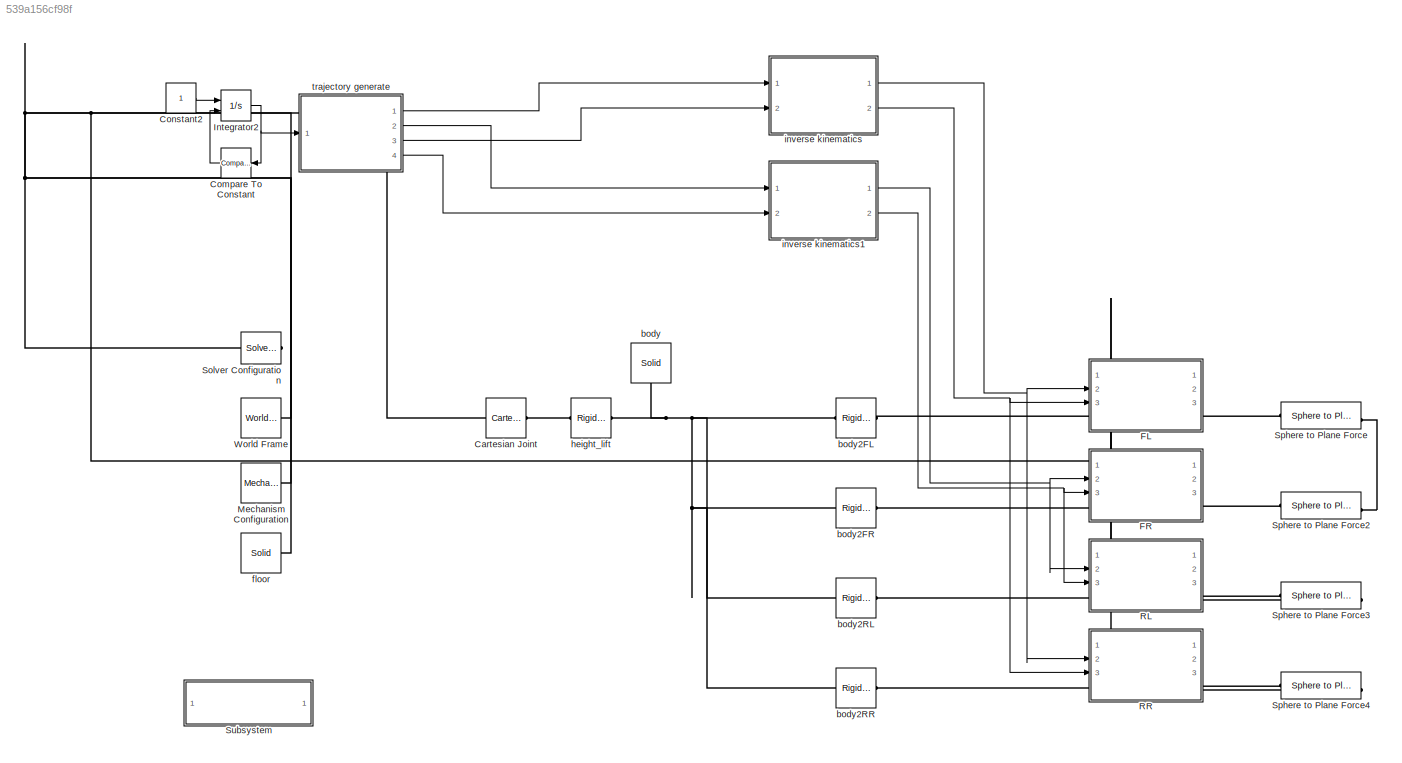
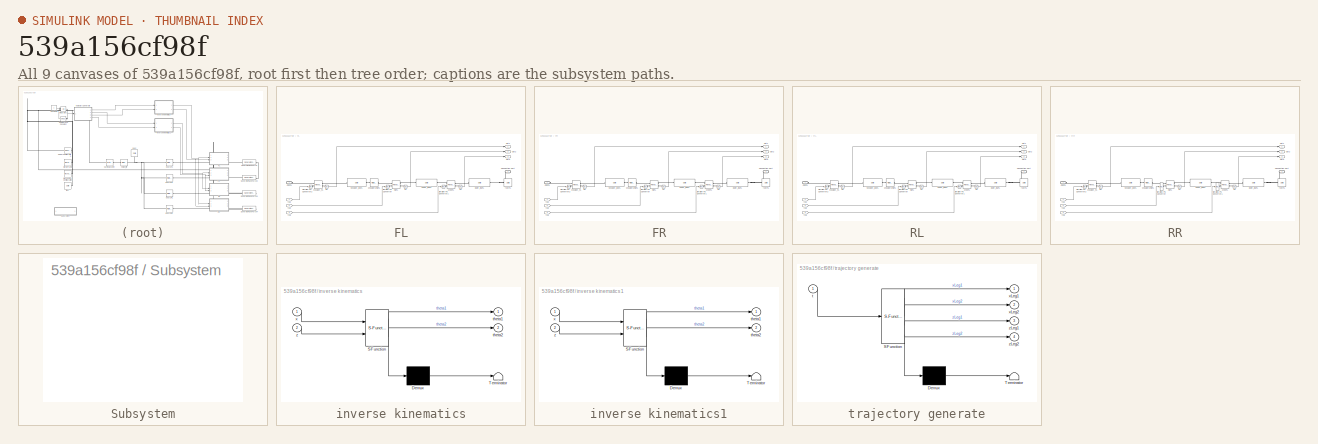
[diagram: thumbnail index - all 9 canvases of the model, root first then tree order]
MODEL slx_539a156cf98f
KIND model
CONFIG AbsTol = auto
CONFIG EnableMultiTasking = on
CONFIG FixedStep = 0.001
CONFIG MaxStep = auto
CONFIG MinStep = auto
CONFIG RelTol = 1e-3
CONFIG SampleTimeConstraint = Unconstrained
CONFIG Solver = FixedStepAuto
CONFIG SolverName = FixedStepAuto
CONFIG StartTime = 0.0
CONFIG StopTime = 5
BLOCK [Reference] Cartesian Joint  REF=sm_lib/Joints/Cartesian
Joint
  Ports = [0, 0, 0, 0, 0, 1, 1]
  SourceBlock = sm_lib/Joints/Cartesian\nJoint
  SourceProductBaseCode = MS
  SourceProductName = Simscape Multibody
  SourceType = Cartesian\nJoint
BLOCK [Reference] Compare To Constant  REF=simulink/Logic and Bit
Operations/Compare
To Constant
  Ports = [1, 1]
  SourceBlock = simulink/Logic and Bit\nOperations/Compare\nTo Constant
  SourceProductBaseCode = SL
  SourceProductName = Simulink
  SourceType = Compare To Constant
BLOCK [Constant] Constant2
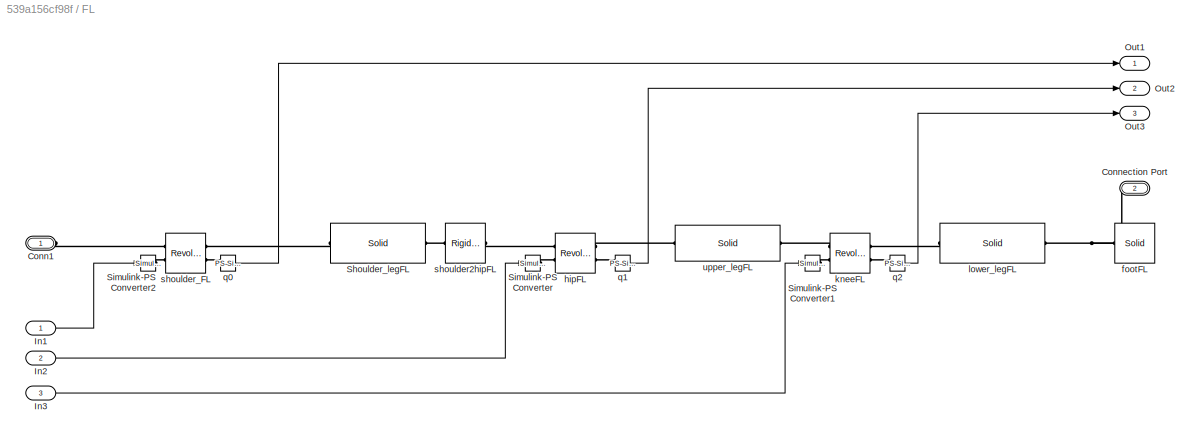
BLOCK [SubSystem] FL
  Ports = [3, 3, 0, 0, 0, 1, 1]
  RequestExecContextInheritance = off
BLOCK [PMIOPort] FL/Conn1
  Side = Left
BLOCK [PMIOPort] FL/Connection Port
  Port = 2
  Side = Right
BLOCK [Inport] FL/In1
  IconDisplay = Port number
BLOCK [Inport] FL/In2
  IconDisplay = Port number
  Port = 2
BLOCK [Inport] FL/In3
  IconDisplay = Port number
  Port = 3
BLOCK [Outport] FL/Out1
  IconDisplay = Port number
BLOCK [Outport] FL/Out2
  IconDisplay = Port number
  Port = 2
BLOCK [Outport] FL/Out3
  IconDisplay = Port number
  Port = 3
BLOCK [Reference] FL/Shoulder_legFL  REF=sm_lib/Body Elements/Solid
  Ports = [0, 0, 0, 0, 0, 1, 1]
  SourceBlock = sm_lib/Body Elements/Solid
  SourceProductBaseCode = MS
  SourceProductName = Simscape Multibody
  SourceType = Solid
BLOCK [Reference] FL/Simulink-PS Converter  REF=nesl_utility/Simulink-PS
Converter
  Ports = [1, 0, 0, 0, 0, 0, 1]
  SourceBlock = nesl_utility/Simulink-PS\nConverter
  SourceProductBaseCode = SS
  SourceProductName = Simscape
  SourceType = Simulink-PS\nConverter
BLOCK [Reference] FL/Simulink-PS Converter1  REF=nesl_utility/Simulink-PS
Converter
  Ports = [1, 0, 0, 0, 0, 0, 1]
  SourceBlock = nesl_utility/Simulink-PS\nConverter
  SourceProductBaseCode = SS
  SourceProductName = Simscape
  SourceType = Simulink-PS\nConverter
BLOCK [Reference] FL/Simulink-PS Converter2  REF=nesl_utility/Simulink-PS
Converter
  Ports = [1, 0, 0, 0, 0, 0, 1]
  SourceBlock = nesl_utility/Simulink-PS\nConverter
  SourceProductBaseCode = SS
  SourceProductName = Simscape
  SourceType = Simulink-PS\nConverter
BLOCK [Reference] FL/footFL  REF=sm_lib/Body Elements/Solid
  Ports = [0, 0, 0, 0, 0, 0, 1]
  SourceBlock = sm_lib/Body Elements/Solid
  SourceProductBaseCode = MS
  SourceProductName = Simscape Multibody
  SourceType = Solid
BLOCK [Reference] FL/hipFL  REF=sm_lib/Joints/Revolute Joint
  Ports = [0, 0, 0, 0, 0, 2, 2]
  SourceBlock = sm_lib/Joints/Revolute Joint
  SourceProductBaseCode = MS
  SourceProductName = Simscape Multibody
  SourceType = Revolute Joint
BLOCK [Reference] FL/kneeFL  REF=sm_lib/Joints/Revolute Joint
  Ports = [0, 0, 0, 0, 0, 2, 2]
  SourceBlock = sm_lib/Joints/Revolute Joint
  SourceProductBaseCode = MS
  SourceProductName = Simscape Multibody
  SourceType = Revolute Joint
BLOCK [Reference] FL/lower_legFL  REF=sm_lib/Body Elements/Solid
  Ports = [0, 0, 0, 0, 0, 1, 1]
  SourceBlock = sm_lib/Body Elements/Solid
  SourceProductBaseCode = MS
  SourceProductName = Simscape Multibody
  SourceType = Solid
BLOCK [Reference] FL/q0  REF=nesl_utility/PS-Simulink
Converter
  Ports = [0, 1, 0, 0, 0, 1]
  SourceBlock = nesl_utility/PS-Simulink\nConverter
  SourceProductBaseCode = SS
  SourceProductName = Simscape
  SourceType = PS-Simulink\nConverter
BLOCK [Reference] FL/q1  REF=nesl_utility/PS-Simulink
Converter
  Ports = [0, 1, 0, 0, 0, 1]
  SourceBlock = nesl_utility/PS-Simulink\nConverter
  SourceProductBaseCode = SS
  SourceProductName = Simscape
  SourceType = PS-Simulink\nConverter
BLOCK [Reference] FL/q2  REF=nesl_utility/PS-Simulink
Converter
  Ports = [0, 1, 0, 0, 0, 1]
  SourceBlock = nesl_utility/PS-Simulink\nConverter
  SourceProductBaseCode = SS
  SourceProductName = Simscape
  SourceType = PS-Simulink\nConverter
BLOCK [Reference] FL/shoulder2hipFL  REF=sm_lib/Frames and
Transforms/Rigid
Transform
  Ports = [0, 0, 0, 0, 0, 1, 1]
  SourceBlock = sm_lib/Frames and\nTransforms/Rigid\nTransform
  SourceProductBaseCode = MS
  SourceProductName = Simscape Multibody
  SourceType = Rigid\nTransform
BLOCK [Reference] FL/shoulder_FL  REF=sm_lib/Joints/Revolute Joint
  Ports = [0, 0, 0, 0, 0, 2, 2]
  SourceBlock = sm_lib/Joints/Revolute Joint
  SourceProductBaseCode = MS
  SourceProductName = Simscape Multibody
  SourceType = Revolute Joint
BLOCK [Reference] FL/upper_legFL  REF=sm_lib/Body Elements/Solid
  Ports = [0, 0, 0, 0, 0, 1, 1]
  SourceBlock = sm_lib/Body Elements/Solid
  SourceProductBaseCode = MS
  SourceProductName = Simscape Multibody
  SourceType = Solid
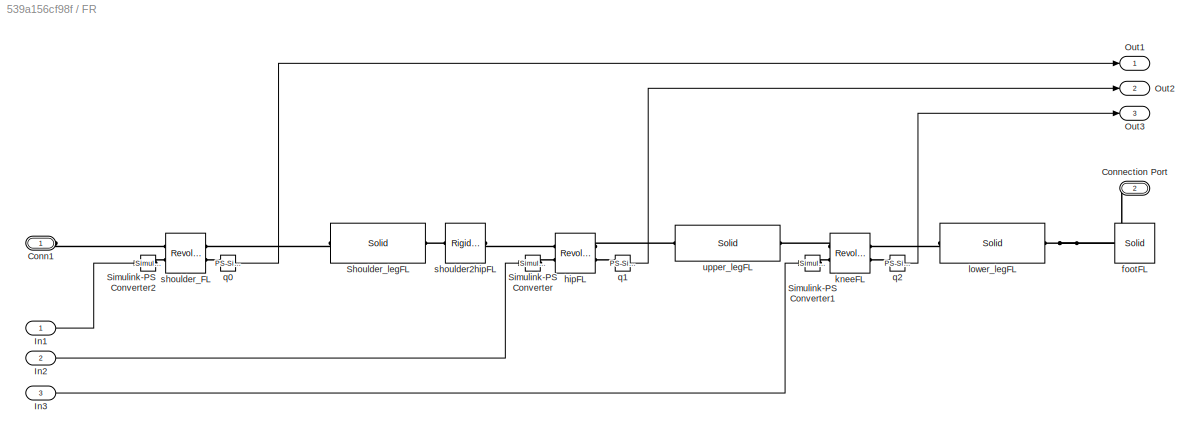
BLOCK [SubSystem] FR
  Ports = [3, 3, 0, 0, 0, 1, 1]
  RequestExecContextInheritance = off
BLOCK [PMIOPort] FR/Conn1
  Side = Left
BLOCK [PMIOPort] FR/Connection Port
  Port = 2
  Side = Right
BLOCK [Inport] FR/In1
  IconDisplay = Port number
BLOCK [Inport] FR/In2
  IconDisplay = Port number
  Port = 2
BLOCK [Inport] FR/In3
  IconDisplay = Port number
  Port = 3
BLOCK [Outport] FR/Out1
  IconDisplay = Port number
BLOCK [Outport] FR/Out2
  IconDisplay = Port number
  Port = 2
BLOCK [Outport] FR/Out3
  IconDisplay = Port number
  Port = 3
BLOCK [Reference] FR/Shoulder_legFL  REF=sm_lib/Body Elements/Solid
  Ports = [0, 0, 0, 0, 0, 1, 1]
  SourceBlock = sm_lib/Body Elements/Solid
  SourceProductBaseCode = MS
  SourceProductName = Simscape Multibody
  SourceType = Solid
BLOCK [Reference] FR/Simulink-PS Converter  REF=nesl_utility/Simulink-PS
Converter
  Ports = [1, 0, 0, 0, 0, 0, 1]
  SourceBlock = nesl_utility/Simulink-PS\nConverter
  SourceProductBaseCode = SS
  SourceProductName = Simscape
  SourceType = Simulink-PS\nConverter
BLOCK [Reference] FR/Simulink-PS Converter1  REF=nesl_utility/Simulink-PS
Converter
  Ports = [1, 0, 0, 0, 0, 0, 1]
  SourceBlock = nesl_utility/Simulink-PS\nConverter
  SourceProductBaseCode = SS
  SourceProductName = Simscape
  SourceType = Simulink-PS\nConverter
BLOCK [Reference] FR/Simulink-PS Converter2  REF=nesl_utility/Simulink-PS
Converter
  Ports = [1, 0, 0, 0, 0, 0, 1]
  SourceBlock = nesl_utility/Simulink-PS\nConverter
  SourceProductBaseCode = SS
  SourceProductName = Simscape
  SourceType = Simulink-PS\nConverter
BLOCK [Reference] FR/footFL  REF=sm_lib/Body Elements/Solid
  Ports = [0, 0, 0, 0, 0, 0, 1]
  SourceBlock = sm_lib/Body Elements/Solid
  SourceProductBaseCode = MS
  SourceProductName = Simscape Multibody
  SourceType = Solid
BLOCK [Reference] FR/hipFL  REF=sm_lib/Joints/Revolute Joint
  Ports = [0, 0, 0, 0, 0, 2, 2]
  SourceBlock = sm_lib/Joints/Revolute Joint
  SourceProductBaseCode = MS
  SourceProductName = Simscape Multibody
  SourceType = Revolute Joint
BLOCK [Reference] FR/kneeFL  REF=sm_lib/Joints/Revolute Joint
  Ports = [0, 0, 0, 0, 0, 2, 2]
  SourceBlock = sm_lib/Joints/Revolute Joint
  SourceProductBaseCode = MS
  SourceProductName = Simscape Multibody
  SourceType = Revolute Joint
BLOCK [Reference] FR/lower_legFL  REF=sm_lib/Body Elements/Solid
  Ports = [0, 0, 0, 0, 0, 1, 1]
  SourceBlock = sm_lib/Body Elements/Solid
  SourceProductBaseCode = MS
  SourceProductName = Simscape Multibody
  SourceType = Solid
BLOCK [Reference] FR/q0  REF=nesl_utility/PS-Simulink
Converter
  Ports = [0, 1, 0, 0, 0, 1]
  SourceBlock = nesl_utility/PS-Simulink\nConverter
  SourceProductBaseCode = SS
  SourceProductName = Simscape
  SourceType = PS-Simulink\nConverter
BLOCK [Reference] FR/q1  REF=nesl_utility/PS-Simulink
Converter
  Ports = [0, 1, 0, 0, 0, 1]
  SourceBlock = nesl_utility/PS-Simulink\nConverter
  SourceProductBaseCode = SS
  SourceProductName = Simscape
  SourceType = PS-Simulink\nConverter
BLOCK [Reference] FR/q2  REF=nesl_utility/PS-Simulink
Converter
  Ports = [0, 1, 0, 0, 0, 1]
  SourceBlock = nesl_utility/PS-Simulink\nConverter
  SourceProductBaseCode = SS
  SourceProductName = Simscape
  SourceType = PS-Simulink\nConverter
BLOCK [Reference] FR/shoulder2hipFL  REF=sm_lib/Frames and
Transforms/Rigid
Transform
  Ports = [0, 0, 0, 0, 0, 1, 1]
  SourceBlock = sm_lib/Frames and\nTransforms/Rigid\nTransform
  SourceProductBaseCode = MS
  SourceProductName = Simscape Multibody
  SourceType = Rigid\nTransform
BLOCK [Reference] FR/shoulder_FL  REF=sm_lib/Joints/Revolute Joint
  Ports = [0, 0, 0, 0, 0, 2, 2]
  SourceBlock = sm_lib/Joints/Revolute Joint
  SourceProductBaseCode = MS
  SourceProductName = Simscape Multibody
  SourceType = Revolute Joint
BLOCK [Reference] FR/upper_legFL  REF=sm_lib/Body Elements/Solid
  Ports = [0, 0, 0, 0, 0, 1, 1]
  SourceBlock = sm_lib/Body Elements/Solid
  SourceProductBaseCode = MS
  SourceProductName = Simscape Multibody
  SourceType = Solid
BLOCK [Integrator] Integrator2
  ExternalReset = level
  Ports = [2, 1]
BLOCK [Reference] Mechanism Configuration  REF=sm_lib/Utilities/Mechanism
Configuration
  Ports = [0, 0, 0, 0, 0, 0, 1]
  SourceBlock = sm_lib/Utilities/Mechanism\nConfiguration
  SourceProductBaseCode = MS
  SourceProductName = Simscape Multibody
  SourceType = Mechanism\nConfiguration
BLOCK [SubSystem] RL
  Ports = [3, 3, 0, 0, 0, 1, 1]
  RequestExecContextInheritance = off
BLOCK [PMIOPort] RL/Conn1
  Side = Left
BLOCK [PMIOPort] RL/Connection Port
  Port = 2
  Side = Right
BLOCK [Inport] RL/In1
  IconDisplay = Port number
BLOCK [Inport] RL/In2
  IconDisplay = Port number
  Port = 2
BLOCK [Inport] RL/In3
  IconDisplay = Port number
  Port = 3
BLOCK [Outport] RL/Out1
  IconDisplay = Port number
BLOCK [Outport] RL/Out2
  IconDisplay = Port number
  Port = 2
BLOCK [Outport] RL/Out3
  IconDisplay = Port number
  Port = 3
BLOCK [Reference] RL/Shoulder_legFL  REF=sm_lib/Body Elements/Solid
  Ports = [0, 0, 0, 0, 0, 1, 1]
  SourceBlock = sm_lib/Body Elements/Solid
  SourceProductBaseCode = MS
  SourceProductName = Simscape Multibody
  SourceType = Solid
BLOCK [Reference] RL/Simulink-PS Converter  REF=nesl_utility/Simulink-PS
Converter
  Ports = [1, 0, 0, 0, 0, 0, 1]
  SourceBlock = nesl_utility/Simulink-PS\nConverter
  SourceProductBaseCode = SS
  SourceProductName = Simscape
  SourceType = Simulink-PS\nConverter
BLOCK [Reference] RL/Simulink-PS Converter1  REF=nesl_utility/Simulink-PS
Converter
  Ports = [1, 0, 0, 0, 0, 0, 1]
  SourceBlock = nesl_utility/Simulink-PS\nConverter
  SourceProductBaseCode = SS
  SourceProductName = Simscape
  SourceType = Simulink-PS\nConverter
BLOCK [Reference] RL/Simulink-PS Converter2  REF=nesl_utility/Simulink-PS
Converter
  Ports = [1, 0, 0, 0, 0, 0, 1]
  SourceBlock = nesl_utility/Simulink-PS\nConverter
  SourceProductBaseCode = SS
  SourceProductName = Simscape
  SourceType = Simulink-PS\nConverter
BLOCK [Reference] RL/footFL  REF=sm_lib/Body Elements/Solid
  Ports = [0, 0, 0, 0, 0, 0, 1]
  SourceBlock = sm_lib/Body Elements/Solid
  SourceProductBaseCode = MS
  SourceProductName = Simscape Multibody
  SourceType = Solid
BLOCK [Reference] RL/hipFL  REF=sm_lib/Joints/Revolute Joint
  Ports = [0, 0, 0, 0, 0, 2, 2]
  SourceBlock = sm_lib/Joints/Revolute Joint
  SourceProductBaseCode = MS
  SourceProductName = Simscape Multibody
  SourceType = Revolute Joint
BLOCK [Reference] RL/kneeFL  REF=sm_lib/Joints/Revolute Joint
  Ports = [0, 0, 0, 0, 0, 2, 2]
  SourceBlock = sm_lib/Joints/Revolute Joint
  SourceProductBaseCode = MS
  SourceProductName = Simscape Multibody
  SourceType = Revolute Joint
BLOCK [Reference] RL/lower_legFL  REF=sm_lib/Body Elements/Solid
  Ports = [0, 0, 0, 0, 0, 1, 1]
  SourceBlock = sm_lib/Body Elements/Solid
  SourceProductBaseCode = MS
  SourceProductName = Simscape Multibody
  SourceType = Solid
BLOCK [Reference] RL/q0  REF=nesl_utility/PS-Simulink
Converter
  Ports = [0, 1, 0, 0, 0, 1]
  SourceBlock = nesl_utility/PS-Simulink\nConverter
  SourceProductBaseCode = SS
  SourceProductName = Simscape
  SourceType = PS-Simulink\nConverter
BLOCK [Reference] RL/q1  REF=nesl_utility/PS-Simulink
Converter
  Ports = [0, 1, 0, 0, 0, 1]
  SourceBlock = nesl_utility/PS-Simulink\nConverter
  SourceProductBaseCode = SS
  SourceProductName = Simscape
  SourceType = PS-Simulink\nConverter
BLOCK [Reference] RL/q2  REF=nesl_utility/PS-Simulink
Converter
  Ports = [0, 1, 0, 0, 0, 1]
  SourceBlock = nesl_utility/PS-Simulink\nConverter
  SourceProductBaseCode = SS
  SourceProductName = Simscape
  SourceType = PS-Simulink\nConverter
BLOCK [Reference] RL/shoulder2hipFL  REF=sm_lib/Frames and
Transforms/Rigid
Transform
  Ports = [0, 0, 0, 0, 0, 1, 1]
  SourceBlock = sm_lib/Frames and\nTransforms/Rigid\nTransform
  SourceProductBaseCode = MS
  SourceProductName = Simscape Multibody
  SourceType = Rigid\nTransform
BLOCK [Reference] RL/shoulder_FL  REF=sm_lib/Joints/Revolute Joint
  Ports = [0, 0, 0, 0, 0, 2, 2]
  SourceBlock = sm_lib/Joints/Revolute Joint
  SourceProductBaseCode = MS
  SourceProductName = Simscape Multibody
  SourceType = Revolute Joint
BLOCK [Reference] RL/upper_legFL  REF=sm_lib/Body Elements/Solid
  Ports = [0, 0, 0, 0, 0, 1, 1]
  SourceBlock = sm_lib/Body Elements/Solid
  SourceProductBaseCode = MS
  SourceProductName = Simscape Multibody
  SourceType = Solid
BLOCK [SubSystem] RR
  Ports = [3, 3, 0, 0, 0, 1, 1]
  RequestExecContextInheritance = off
BLOCK [PMIOPort] RR/Conn1
  Side = Left
BLOCK [PMIOPort] RR/Connection Port
  Port = 2
  Side = Right
BLOCK [Inport] RR/In1
  IconDisplay = Port number
BLOCK [Inport] RR/In2
  IconDisplay = Port number
  Port = 2
BLOCK [Inport] RR/In3
  IconDisplay = Port number
  Port = 3
BLOCK [Outport] RR/Out1
  IconDisplay = Port number
BLOCK [Outport] RR/Out2
  IconDisplay = Port number
  Port = 2
BLOCK [Outport] RR/Out3
  IconDisplay = Port number
  Port = 3
BLOCK [Reference] RR/Shoulder_legFL  REF=sm_lib/Body Elements/Solid
  Ports = [0, 0, 0, 0, 0, 1, 1]
  SourceBlock = sm_lib/Body Elements/Solid
  SourceProductBaseCode = MS
  SourceProductName = Simscape Multibody
  SourceType = Solid
BLOCK [Reference] RR/Simulink-PS Converter  REF=nesl_utility/Simulink-PS
Converter
  Ports = [1, 0, 0, 0, 0, 0, 1]
  SourceBlock = nesl_utility/Simulink-PS\nConverter
  SourceProductBaseCode = SS
  SourceProductName = Simscape
  SourceType = Simulink-PS\nConverter
BLOCK [Reference] RR/Simulink-PS Converter1  REF=nesl_utility/Simulink-PS
Converter
  Ports = [1, 0, 0, 0, 0, 0, 1]
  SourceBlock = nesl_utility/Simulink-PS\nConverter
  SourceProductBaseCode = SS
  SourceProductName = Simscape
  SourceType = Simulink-PS\nConverter
BLOCK [Reference] RR/Simulink-PS Converter2  REF=nesl_utility/Simulink-PS
Converter
  Ports = [1, 0, 0, 0, 0, 0, 1]
  SourceBlock = nesl_utility/Simulink-PS\nConverter
  SourceProductBaseCode = SS
  SourceProductName = Simscape
  SourceType = Simulink-PS\nConverter
BLOCK [Reference] RR/footFL  REF=sm_lib/Body Elements/Solid
  Ports = [0, 0, 0, 0, 0, 0, 1]
  SourceBlock = sm_lib/Body Elements/Solid
  SourceProductBaseCode = MS
  SourceProductName = Simscape Multibody
  SourceType = Solid
BLOCK [Reference] RR/hipFL  REF=sm_lib/Joints/Revolute Joint
  Ports = [0, 0, 0, 0, 0, 2, 2]
  SourceBlock = sm_lib/Joints/Revolute Joint
  SourceProductBaseCode = MS
  SourceProductName = Simscape Multibody
  SourceType = Revolute Joint
BLOCK [Reference] RR/kneeFL  REF=sm_lib/Joints/Revolute Joint
  Ports = [0, 0, 0, 0, 0, 2, 2]
  SourceBlock = sm_lib/Joints/Revolute Joint
  SourceProductBaseCode = MS
  SourceProductName = Simscape Multibody
  SourceType = Revolute Joint
BLOCK [Reference] RR/lower_legFL  REF=sm_lib/Body Elements/Solid
  Ports = [0, 0, 0, 0, 0, 1, 1]
  SourceBlock = sm_lib/Body Elements/Solid
  SourceProductBaseCode = MS
  SourceProductName = Simscape Multibody
  SourceType = Solid
BLOCK [Reference] RR/q0  REF=nesl_utility/PS-Simulink
Converter
  Ports = [0, 1, 0, 0, 0, 1]
  SourceBlock = nesl_utility/PS-Simulink\nConverter
  SourceProductBaseCode = SS
  SourceProductName = Simscape
  SourceType = PS-Simulink\nConverter
BLOCK [Reference] RR/q1  REF=nesl_utility/PS-Simulink
Converter
  Ports = [0, 1, 0, 0, 0, 1]
  SourceBlock = nesl_utility/PS-Simulink\nConverter
  SourceProductBaseCode = SS
  SourceProductName = Simscape
  SourceType = PS-Simulink\nConverter
BLOCK [Reference] RR/q2  REF=nesl_utility/PS-Simulink
Converter
  Ports = [0, 1, 0, 0, 0, 1]
  SourceBlock = nesl_utility/PS-Simulink\nConverter
  SourceProductBaseCode = SS
  SourceProductName = Simscape
  SourceType = PS-Simulink\nConverter
BLOCK [Reference] RR/shoulder2hipFL  REF=sm_lib/Frames and
Transforms/Rigid
Transform
  Ports = [0, 0, 0, 0, 0, 1, 1]
  SourceBlock = sm_lib/Frames and\nTransforms/Rigid\nTransform
  SourceProductBaseCode = MS
  SourceProductName = Simscape Multibody
  SourceType = Rigid\nTransform
BLOCK [Reference] RR/shoulder_FL  REF=sm_lib/Joints/Revolute Joint
  Ports = [0, 0, 0, 0, 0, 2, 2]
  SourceBlock = sm_lib/Joints/Revolute Joint
  SourceProductBaseCode = MS
  SourceProductName = Simscape Multibody
  SourceType = Revolute Joint
BLOCK [Reference] RR/upper_legFL  REF=sm_lib/Body Elements/Solid
  Ports = [0, 0, 0, 0, 0, 1, 1]
  SourceBlock = sm_lib/Body Elements/Solid
  SourceProductBaseCode = MS
  SourceProductName = Simscape Multibody
  SourceType = Solid
BLOCK [Reference] Solver Configuration  REF=nesl_utility/Solver
Configuration
  Ports = [0, 0, 0, 0, 0, 0, 1]
  SourceBlock = nesl_utility/Solver\nConfiguration
  SourceProductBaseCode = SS
  SourceProductName = Simscape
  SourceType = Solver\nConfiguration
BLOCK [Reference] Sphere to Plane Force  REF=Contact_Forces_Lib/3D/Sphere to Plane Force
  Ports = [0, 1, 0, 0, 0, 1, 1]
  SourceBlock = Contact_Forces_Lib/3D/Sphere to Plane Force
  SourceProductName = Simscape Multibody Contact Forces Library
  SourceType = Sphere to Plane Force
BLOCK [Reference] Sphere to Plane Force2  REF=Contact_Forces_Lib/3D/Sphere to Plane Force
  Ports = [0, 1, 0, 0, 0, 1, 1]
  SourceBlock = Contact_Forces_Lib/3D/Sphere to Plane Force
  SourceProductName = Simscape Multibody Contact Forces Library
  SourceType = Sphere to Plane Force
BLOCK [Reference] Sphere to Plane Force3  REF=Contact_Forces_Lib/3D/Sphere to Plane Force
  Ports = [0, 1, 0, 0, 0, 1, 1]
  SourceBlock = Contact_Forces_Lib/3D/Sphere to Plane Force
  SourceProductName = Simscape Multibody Contact Forces Library
  SourceType = Sphere to Plane Force
BLOCK [Reference] Sphere to Plane Force4  REF=Contact_Forces_Lib/3D/Sphere to Plane Force
  Ports = [0, 1, 0, 0, 0, 1, 1]
  SourceBlock = Contact_Forces_Lib/3D/Sphere to Plane Force
  SourceProductName = Simscape Multibody Contact Forces Library
  SourceType = Sphere to Plane Force
BLOCK [SubSystem] Subsystem
  OpenFcn = open_system('sm_lib')
  Ports = []
  RequestExecContextInheritance = off
  ShowPortLabels = none
BLOCK [Reference] World Frame  REF=sm_lib/Frames and
Transforms/World Frame
  Ports = [0, 0, 0, 0, 0, 0, 1]
  SourceBlock = sm_lib/Frames and\nTransforms/World Frame
  SourceProductBaseCode = MS
  SourceProductName = Simscape Multibody
  SourceType = World Frame
BLOCK [Reference] body  REF=sm_lib/Body Elements/Solid
  Ports = [0, 0, 0, 0, 0, 0, 1]
  SourceBlock = sm_lib/Body Elements/Solid
  SourceProductBaseCode = MS
  SourceProductName = Simscape Multibody
  SourceType = Solid
BLOCK [Reference] body2FL  REF=sm_lib/Frames and
Transforms/Rigid
Transform
  Ports = [0, 0, 0, 0, 0, 1, 1]
  SourceBlock = sm_lib/Frames and\nTransforms/Rigid\nTransform
  SourceProductBaseCode = MS
  SourceProductName = Simscape Multibody
  SourceType = Rigid\nTransform
BLOCK [Reference] body2FR  REF=sm_lib/Frames and
Transforms/Rigid
Transform
  Ports = [0, 0, 0, 0, 0, 1, 1]
  SourceBlock = sm_lib/Frames and\nTransforms/Rigid\nTransform
  SourceProductBaseCode = MS
  SourceProductName = Simscape Multibody
  SourceType = Rigid\nTransform
BLOCK [Reference] body2RL  REF=sm_lib/Frames and
Transforms/Rigid
Transform
  Ports = [0, 0, 0, 0, 0, 1, 1]
  SourceBlock = sm_lib/Frames and\nTransforms/Rigid\nTransform
  SourceProductBaseCode = MS
  SourceProductName = Simscape Multibody
  SourceType = Rigid\nTransform
BLOCK [Reference] body2RR  REF=sm_lib/Frames and
Transforms/Rigid
Transform
  Ports = [0, 0, 0, 0, 0, 1, 1]
  SourceBlock = sm_lib/Frames and\nTransforms/Rigid\nTransform
  SourceProductBaseCode = MS
  SourceProductName = Simscape Multibody
  SourceType = Rigid\nTransform
BLOCK [Reference] floor  REF=sm_lib/Body Elements/Solid
  Ports = [0, 0, 0, 0, 0, 0, 1]
  SourceBlock = sm_lib/Body Elements/Solid
  SourceProductBaseCode = MS
  SourceProductName = Simscape Multibody
  SourceType = Solid
BLOCK [Reference] height_lift  REF=sm_lib/Frames and
Transforms/Rigid
Transform
  Ports = [0, 0, 0, 0, 0, 1, 1]
  SourceBlock = sm_lib/Frames and\nTransforms/Rigid\nTransform
  SourceProductBaseCode = MS
  SourceProductName = Simscape Multibody
  SourceType = Rigid\nTransform
BLOCK [SubSystem] inverse kinematics
  ErrorFcn = Stateflow.Translate.translate
  PermitHierarchicalResolution = ExplicitOnly
  Ports = [2, 2]
  RequestExecContextInheritance = off
  SFBlockType = MATLAB Function
  TreatAsAtomicUnit = on
BLOCK [Demux] inverse kinematics/ Demux 
  Outputs = 1
  Ports = [1, 1]
BLOCK [S-Function] inverse kinematics/ SFunction 
  EnableBusSupport = on
  FunctionName = sf_sfun
  PortCounts = [2 3]
  Ports = [2, 3]
  SFcnIsStateOwnerBlock = off
  SFunctionDeploymentMode = off
  Tag = Stateflow S-Function PosControl_Quadruped 2
BLOCK [Terminator] inverse kinematics/ Terminator 
BLOCK [Outport] inverse kinematics/theta1
  IconDisplay = Port number
BLOCK [Outport] inverse kinematics/theta2
  IconDisplay = Port number
  Port = 2
BLOCK [Inport] inverse kinematics/x
  IconDisplay = Port number
BLOCK [Inport] inverse kinematics/z
  IconDisplay = Port number
  Port = 2
BLOCK [SubSystem] inverse kinematics1
  ErrorFcn = Stateflow.Translate.translate
  PermitHierarchicalResolution = ExplicitOnly
  Ports = [2, 2]
  RequestExecContextInheritance = off
  SFBlockType = MATLAB Function
  TreatAsAtomicUnit = on
BLOCK [Demux] inverse kinematics1/ Demux 
  Outputs = 1
  Ports = [1, 1]
BLOCK [S-Function] inverse kinematics1/ SFunction 
  EnableBusSupport = on
  FunctionName = sf_sfun
  PortCounts = [2 3]
  Ports = [2, 3]
  SFcnIsStateOwnerBlock = off
  SFunctionDeploymentMode = off
  Tag = Stateflow S-Function PosControl_Quadruped 3
BLOCK [Terminator] inverse kinematics1/ Terminator 
BLOCK [Outport] inverse kinematics1/theta1
  IconDisplay = Port number
BLOCK [Outport] inverse kinematics1/theta2
  IconDisplay = Port number
  Port = 2
BLOCK [Inport] inverse kinematics1/x
  IconDisplay = Port number
BLOCK [Inport] inverse kinematics1/z
  IconDisplay = Port number
  Port = 2
BLOCK [SubSystem] trajectory generate
  ErrorFcn = Stateflow.Translate.translate
  PermitHierarchicalResolution = ExplicitOnly
  Ports = [1, 4]
  RequestExecContextInheritance = off
  SFBlockType = MATLAB Function
  TreatAsAtomicUnit = on
BLOCK [Demux] trajectory generate/ Demux 
  Outputs = 1
  Ports = [1, 1]
BLOCK [S-Function] trajectory generate/ SFunction 
  EnableBusSupport = on
  FunctionName = sf_sfun
  PortCounts = [1 5]
  Ports = [1, 5]
  SFcnIsStateOwnerBlock = off
  SFunctionDeploymentMode = off
  Tag = Stateflow S-Function PosControl_Quadruped 1
BLOCK [Terminator] trajectory generate/ Terminator 
BLOCK [Inport] trajectory generate/t
  IconDisplay = Port number
BLOCK [Outport] trajectory generate/xLeg1
  IconDisplay = Port number
BLOCK [Outport] trajectory generate/xLeg2
  IconDisplay = Port number
  Port = 2
BLOCK [Outport] trajectory generate/zLeg1
  IconDisplay = Port number
  Port = 3
BLOCK [Outport] trajectory generate/zLeg2
  IconDisplay = Port number
  Port = 4
LINE Compare To Constant:1 -> Integrator2:2
LINE Constant2:1 -> Integrator2:1
LINE FL/In1:1 -> FL/Simulink-PS Converter2:1
LINE FL/In2:1 -> FL/Simulink-PS Converter:1
LINE FL/In3:1 -> FL/Simulink-PS Converter1:1
LINE FL/q0:1 -> FL/Out1:1
LINE FL/q1:1 -> FL/Out2:1
LINE FL/q2:1 -> FL/Out3:1
LINE FR/In1:1 -> FR/Simulink-PS Converter2:1
LINE FR/In2:1 -> FR/Simulink-PS Converter:1
LINE FR/In3:1 -> FR/Simulink-PS Converter1:1
LINE FR/q0:1 -> FR/Out1:1
LINE FR/q1:1 -> FR/Out2:1
LINE FR/q2:1 -> FR/Out3:1
NET Integrator2:1 -> Compare To Constant:1, trajectory generate:1
LINE RL/In1:1 -> RL/Simulink-PS Converter2:1
LINE RL/In2:1 -> RL/Simulink-PS Converter:1
LINE RL/In3:1 -> RL/Simulink-PS Converter1:1
LINE RL/q0:1 -> RL/Out1:1
LINE RL/q1:1 -> RL/Out2:1
LINE RL/q2:1 -> RL/Out3:1
LINE RR/In1:1 -> RR/Simulink-PS Converter2:1
LINE RR/In2:1 -> RR/Simulink-PS Converter:1
LINE RR/In3:1 -> RR/Simulink-PS Converter1:1
LINE RR/q0:1 -> RR/Out1:1
LINE RR/q1:1 -> RR/Out2:1
LINE RR/q2:1 -> RR/Out3:1
NET inverse kinematics1:1 -> FR:2, RL:2
NET inverse kinematics1:2 -> FR:3, RL:3
NET inverse kinematics:1 -> FL:2, RR:2
NET inverse kinematics:2 -> FL:3, RR:3
LINE trajectory generate:1 -> inverse kinematics:1
LINE trajectory generate:2 -> inverse kinematics1:1
LINE trajectory generate:3 -> inverse kinematics:2
LINE trajectory generate:4 -> inverse kinematics1:2
PNET net1: Cartesian Joint:LConn1 -- Mechanism Configuration:RConn1 -- Solver Configuration:RConn1 -- Sphere to Plane Force2:RConn1 -- Sphere to Plane Force3:RConn1 -- Sphere to Plane Force4:RConn1 -- Sphere to Plane Force:RConn1 -- World Frame:RConn1 -- floor:RConn1
PLINE Cartesian Joint:RConn1 -- height_lift:LConn1
PLINE FL/Conn1:RConn1 -- FL/shoulder_FL:LConn1
PNET net2: FL/Connection Port:RConn1 -- FL/footFL:RConn1 -- FL/lower_legFL:RConn1
PLINE FL/Shoulder_legFL:LConn1 -- FL/shoulder_FL:RConn1
PLINE FL/Shoulder_legFL:RConn1 -- FL/shoulder2hipFL:LConn1
PLINE FL/Simulink-PS Converter1:RConn1 -- FL/kneeFL:LConn2
PLINE FL/Simulink-PS Converter2:RConn1 -- FL/shoulder_FL:LConn2
PLINE FL/Simulink-PS Converter:RConn1 -- FL/hipFL:LConn2
PLINE FL/hipFL:LConn1 -- FL/shoulder2hipFL:RConn1
PLINE FL/hipFL:RConn1 -- FL/upper_legFL:LConn1
PLINE FL/hipFL:RConn2 -- FL/q1:LConn1
PLINE FL/kneeFL:LConn1 -- FL/upper_legFL:RConn1
PLINE FL/kneeFL:RConn1 -- FL/lower_legFL:LConn1
PLINE FL/kneeFL:RConn2 -- FL/q2:LConn1
PLINE FL/q0:LConn1 -- FL/shoulder_FL:RConn2
PLINE FL:LConn1 -- body2FL:RConn1
PLINE FL:RConn1 -- Sphere to Plane Force:LConn1
PLINE FR/Conn1:RConn1 -- FR/shoulder_FL:LConn1
PNET net3: FR/Connection Port:RConn1 -- FR/footFL:RConn1 -- FR/lower_legFL:RConn1
PLINE FR/Shoulder_legFL:LConn1 -- FR/shoulder_FL:RConn1
PLINE FR/Shoulder_legFL:RConn1 -- FR/shoulder2hipFL:LConn1
PLINE FR/Simulink-PS Converter1:RConn1 -- FR/kneeFL:LConn2
PLINE FR/Simulink-PS Converter2:RConn1 -- FR/shoulder_FL:LConn2
PLINE FR/Simulink-PS Converter:RConn1 -- FR/hipFL:LConn2
PLINE FR/hipFL:LConn1 -- FR/shoulder2hipFL:RConn1
PLINE FR/hipFL:RConn1 -- FR/upper_legFL:LConn1
PLINE FR/hipFL:RConn2 -- FR/q1:LConn1
PLINE FR/kneeFL:LConn1 -- FR/upper_legFL:RConn1
PLINE FR/kneeFL:RConn1 -- FR/lower_legFL:LConn1
PLINE FR/kneeFL:RConn2 -- FR/q2:LConn1
PLINE FR/q0:LConn1 -- FR/shoulder_FL:RConn2
PLINE FR:LConn1 -- body2FR:RConn1
PLINE FR:RConn1 -- Sphere to Plane Force2:LConn1
PLINE RL/Conn1:RConn1 -- RL/shoulder_FL:LConn1
PNET net4: RL/Connection Port:RConn1 -- RL/footFL:RConn1 -- RL/lower_legFL:RConn1
PLINE RL/Shoulder_legFL:LConn1 -- RL/shoulder_FL:RConn1
PLINE RL/Shoulder_legFL:RConn1 -- RL/shoulder2hipFL:LConn1
PLINE RL/Simulink-PS Converter1:RConn1 -- RL/kneeFL:LConn2
PLINE RL/Simulink-PS Converter2:RConn1 -- RL/shoulder_FL:LConn2
PLINE RL/Simulink-PS Converter:RConn1 -- RL/hipFL:LConn2
PLINE RL/hipFL:LConn1 -- RL/shoulder2hipFL:RConn1
PLINE RL/hipFL:RConn1 -- RL/upper_legFL:LConn1
PLINE RL/hipFL:RConn2 -- RL/q1:LConn1
PLINE RL/kneeFL:LConn1 -- RL/upper_legFL:RConn1
PLINE RL/kneeFL:RConn1 -- RL/lower_legFL:LConn1
PLINE RL/kneeFL:RConn2 -- RL/q2:LConn1
PLINE RL/q0:LConn1 -- RL/shoulder_FL:RConn2
PLINE RL:LConn1 -- body2RL:RConn1
PLINE RL:RConn1 -- Sphere to Plane Force3:LConn1
PLINE RR/Conn1:RConn1 -- RR/shoulder_FL:LConn1
PNET net5: RR/Connection Port:RConn1 -- RR/footFL:RConn1 -- RR/lower_legFL:RConn1
PLINE RR/Shoulder_legFL:LConn1 -- RR/shoulder_FL:RConn1
PLINE RR/Shoulder_legFL:RConn1 -- RR/shoulder2hipFL:LConn1
PLINE RR/Simulink-PS Converter1:RConn1 -- RR/kneeFL:LConn2
PLINE RR/Simulink-PS Converter2:RConn1 -- RR/shoulder_FL:LConn2
PLINE RR/Simulink-PS Converter:RConn1 -- RR/hipFL:LConn2
PLINE RR/hipFL:LConn1 -- RR/shoulder2hipFL:RConn1
PLINE RR/hipFL:RConn1 -- RR/upper_legFL:LConn1
PLINE RR/hipFL:RConn2 -- RR/q1:LConn1
PLINE RR/kneeFL:LConn1 -- RR/upper_legFL:RConn1
PLINE RR/kneeFL:RConn1 -- RR/lower_legFL:LConn1
PLINE RR/kneeFL:RConn2 -- RR/q2:LConn1
PLINE RR/q0:LConn1 -- RR/shoulder_FL:RConn2
PLINE RR:LConn1 -- body2RR:RConn1
PLINE RR:RConn1 -- Sphere to Plane Force4:LConn1
PNET net6: body2FL:LConn1 -- body2FR:LConn1 -- body2RL:LConn1 -- body2RR:LConn1 -- body:RConn1 -- height_lift:RConn1
note: NET lines group one-source signal fan-out (src -> all destinations, sorted); 1:1 wires keep LINE; PNET lines group multi-terminal physical nets as a canonical sorted terminal list (undirected conserving connections); 2-terminal nets keep the pairwise PLINE form
CHART trajectory generate states=1 transitions=1
  STATE_LABEL 'eML_blk_kernel()'
  STATE_LABEL 'SCRIPT:\nfunction [xLeg1,xLeg2,zLeg1,zLeg2] = fcn(t)\n\nlamda = 0.5;%摆动周期占比\nTs = 1;%周期时间\n\nXs = 0;%x轴起点\nXe = 0.4;%x轴终点\n\nH = 0.4;%抬腿高度\nZs = -0.7;%z轴起点\n\n%x=[];z=[];\n%x_last=0;z_last=0;t_last=0;\n\n\nif t>=0 && t<=lamda*Ts\n    sigma = 2*pi*t/(lamda*Ts);\n    xf = (Xe-Xs)*((sigma-sin(sigma))/(2*pi))+Xs;\n    xb = (Xs-Xe)*((sigma-sin(sigma))/(2*pi))+Xe;\n    z = H*(1-cos(sigma))/2+Zs;\n    \n    xLeg1 = xf;\n    xL...<+434ch>'
CHART inverse kinematics states=1 transitions=1
  STATE_LABEL 'eML_blk_kernel()'
  STATE_LABEL 'SCRIPT:\nfunction [theta1,theta2] = fcn(x,z)\nL1 = 0.5;\nL2 = 0.5;\n\ntemp = (L1*L1+L2*L2-x*x-z*z)/(2*L1*L2);\nif temp>1\n    temp = 1;\nelseif temp<-1\n    temp=1;\nend\ntheta2 = pi-acos(temp);\n\ntemp = (x*x+z*z+L1*L1-L2*L2)/(2*sqrt(x*x+z*z)*L1);\nif temp>1\n    temp = 1;\nelseif temp<-1\n    temp=1;\nend\nif(x>0)\n    theta1 = abs(atan(x/z))-acos(temp);\nelseif(x<0)\n    theta1 = -abs(atan(x/z))-acos(temp);\nelse\n   ...<+28ch>'
CHART inverse kinematics1 states=1 transitions=1
  STATE_LABEL 'eML_blk_kernel()'
  STATE_LABEL 'SCRIPT:\nfunction [theta1,theta2] = fcn(x,z)\nL1 = 0.5;\nL2 = 0.5;\n\ntemp = (L1*L1+L2*L2-x*x-z*z)/(2*L1*L2);\nif temp>1\n    temp = 1;\nelseif temp<-1\n    temp=1;\nend\ntheta2 = pi-acos(temp);\n\ntemp = (x*x+z*z+L1*L1-L2*L2)/(2*sqrt(x*x+z*z)*L1);\nif temp>1\n    temp = 1;\nelseif temp<-1\n    temp=1;\nend\nif(x>0)\n    theta1 = abs(atan(x/z))-acos(temp);\nelseif(x<0)\n    theta1 = -abs(atan(x/z))-acos(temp);\nelse\n   ...<+28ch>'
